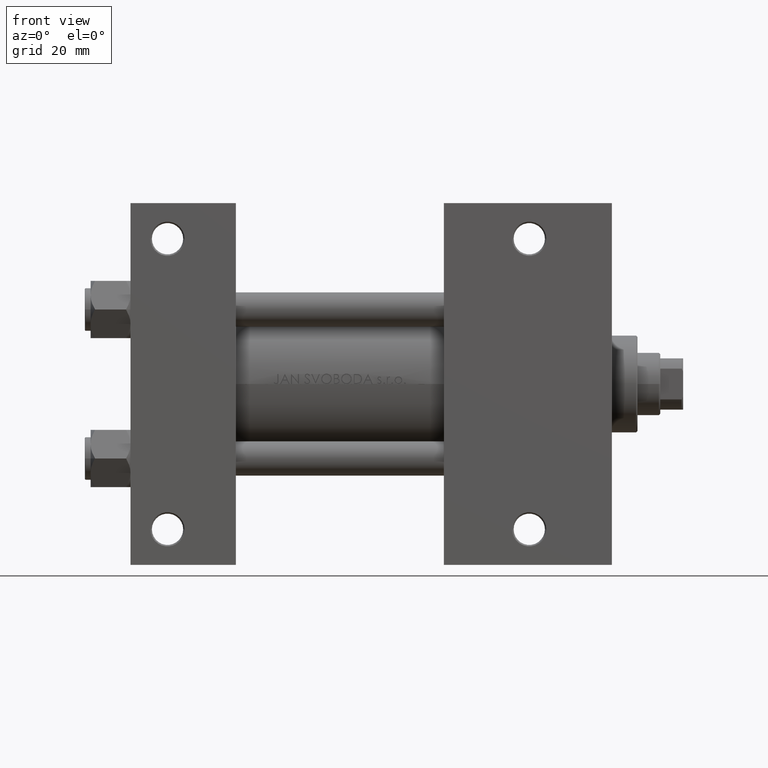
[diagram: clean part render]
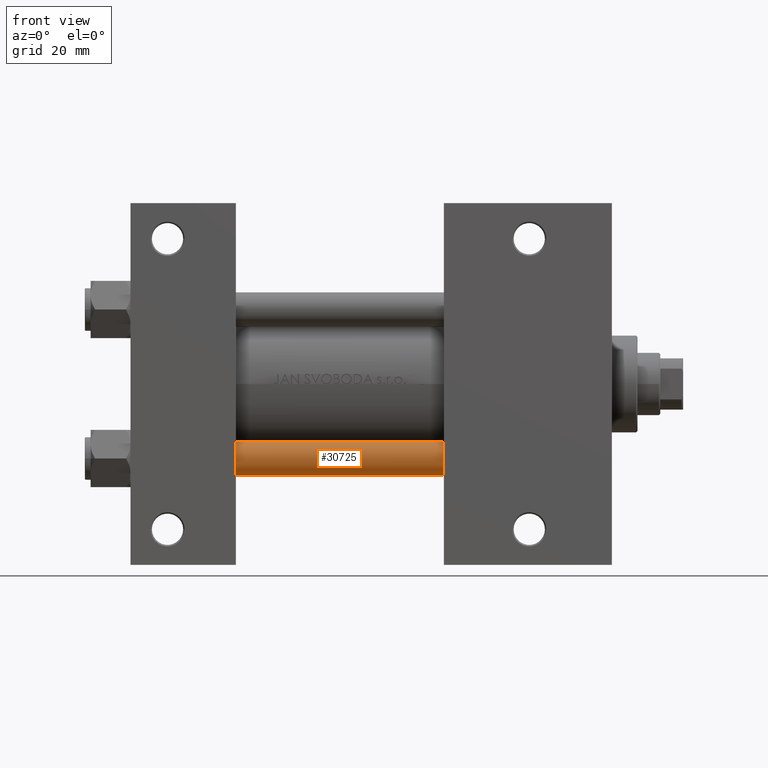
[diagram: same view with one face highlighted and labeled with its STEP entity id]
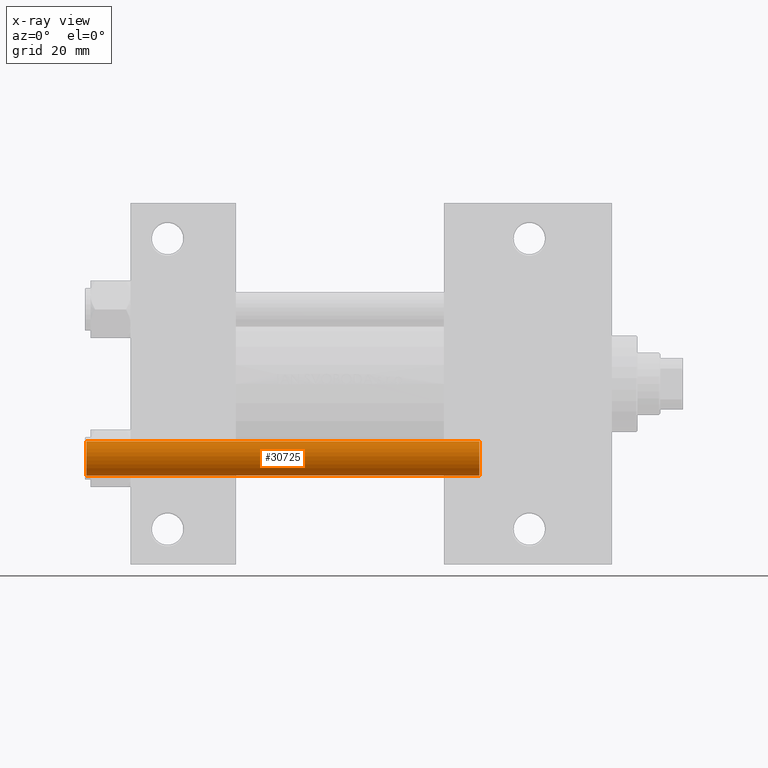
[diagram: x-ray of the same camera — body ghosted, the highlighted face saturated]
A machine part, front view. The second image highlights one B-rep face of the part: STEP entity #30725.
The next image is the same camera in x-ray: the body ghosted, the highlighted face saturated — about 0% of this face is hidden behind the body in this view.
In plain terms, the highlighted cylindrical surface (edge-blend (fillet) strip) has radius 6 mm, axis along (-1, 0, 0).
Its self-contained STEP definition (entity closure, byte-faithful):
#2871 = DIRECTION ( 'NONE',  ( 1.000000000000000000, 0.000000000000000000, 0.000000000000000000 ) ) ;
#2970 = LINE ( 'NONE', #21395, #3674 ) ;
#3139 = CARTESIAN_POINT ( 'NONE',  ( 6.000000000000000888, 7.347880794884120722E-16, 0.5000000000000004441 ) ) ;
#3674 = VECTOR ( 'NONE', #47557, 1000.000000000000000 ) ;
#4793 = VERTEX_POINT ( 'NONE', #40527 ) ;
#5247 = EDGE_CURVE ( 'NONE', #24449, #46185, #32618, .T. ) ;
#5846 = EDGE_CURVE ( 'NONE', #46185, #17900, #7958, .T. ) ;
#5860 = DIRECTION ( 'NONE',  ( 1.000000000000000000, 0.000000000000000000, 0.000000000000000000 ) ) ;
#7958 = CIRCLE ( 'NONE', #26235, 6.000000000000000888 ) ;
#9842 = CARTESIAN_POINT ( 'NONE',  ( 0.000000000000000000, 0.000000000000000000, 0.5000000000000004441 ) ) ;
#10323 = CARTESIAN_POINT ( 'NONE',  ( 6.000000000000000888, 7.347880794884120722E-16, 138.5000000000000284 ) ) ;
#11040 = ORIENTED_EDGE ( 'NONE', *, *, #23203, .F. ) ;
#13885 = AXIS2_PLACEMENT_3D ( 'NONE', #32248, #36234, #5860 ) ;
#13982 = CYLINDRICAL_SURFACE ( 'NONE', #21935, 6.000000000000000888 ) ;
#17900 = VERTEX_POINT ( 'NONE', #27639 ) ;
#21040 = CIRCLE ( 'NONE', #13885, 6.000000000000000888 ) ;
#21231 = ORIENTED_EDGE ( 'NONE', *, *, #25243, .T. ) ;
#21277 = DIRECTION ( 'NONE',  ( -0.000000000000000000, -0.000000000000000000, 1.000000000000000000 ) ) ;
#21395 = CARTESIAN_POINT ( 'NONE',  ( -6.000000000000000888, 0.000000000000000000, 139.0000000000000000 ) ) ;
#21935 = AXIS2_PLACEMENT_3D ( 'NONE', #39889, #29417, #25430 ) ;
#23203 = EDGE_CURVE ( 'NONE', #4793, #17900, #2970, .T. ) ;
#24449 = VERTEX_POINT ( 'NONE', #10323 ) ;
#24683 = FACE_OUTER_BOUND ( 'NONE', #33577, .T. ) ;
#25243 = EDGE_CURVE ( 'NONE', #4793, #24449, #21040, .T. ) ;
#25430 = DIRECTION ( 'NONE',  ( -1.000000000000000000, 0.000000000000000000, 0.000000000000000000 ) ) ;
#26235 = AXIS2_PLACEMENT_3D ( 'NONE', #9842, #21277, #2871 ) ;
#27639 = CARTESIAN_POINT ( 'NONE',  ( -6.000000000000000888, 0.000000000000000000, 0.5000000000000004441 ) ) ;
#29394 = VECTOR ( 'NONE', #34951, 1000.000000000000000 ) ;
#29417 = DIRECTION ( 'NONE',  ( -0.000000000000000000, -0.000000000000000000, -1.000000000000000000 ) ) ;
#30725 = ADVANCED_FACE ( 'NONE', ( #24683 ), #13982, .T. ) ;
#32248 = CARTESIAN_POINT ( 'NONE',  ( 0.000000000000000000, 0.000000000000000000, 138.5000000000000284 ) ) ;
#32618 = LINE ( 'NONE', #40340, #29394 ) ;
#33577 = EDGE_LOOP ( 'NONE', ( #21231, #42456, #36947, #11040 ) ) ;
#34951 = DIRECTION ( 'NONE',  ( -0.000000000000000000, -0.000000000000000000, -1.000000000000000000 ) ) ;
#36234 = DIRECTION ( 'NONE',  ( 0.000000000000000000, 0.000000000000000000, -1.000000000000000000 ) ) ;
#36947 = ORIENTED_EDGE ( 'NONE', *, *, #5846, .T. ) ;
#39889 = CARTESIAN_POINT ( 'NONE',  ( 0.000000000000000000, 0.000000000000000000, 139.0000000000000000 ) ) ;
#40340 = CARTESIAN_POINT ( 'NONE',  ( 6.000000000000000888, 7.347880794884120722E-16, 139.0000000000000000 ) ) ;
#40527 = CARTESIAN_POINT ( 'NONE',  ( -6.000000000000000888, 0.000000000000000000, 138.5000000000000284 ) ) ;
#42456 = ORIENTED_EDGE ( 'NONE', *, *, #5247, .T. ) ;
#46185 = VERTEX_POINT ( 'NONE', #3139 ) ;
#47557 = DIRECTION ( 'NONE',  ( -0.000000000000000000, -0.000000000000000000, -1.000000000000000000 ) ) ;